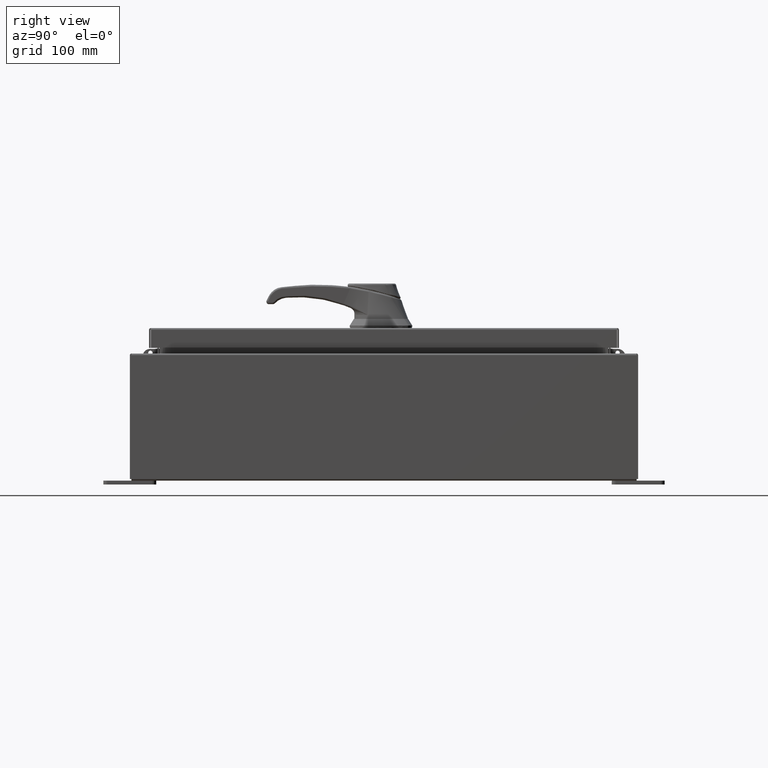
[diagram: clean part render]
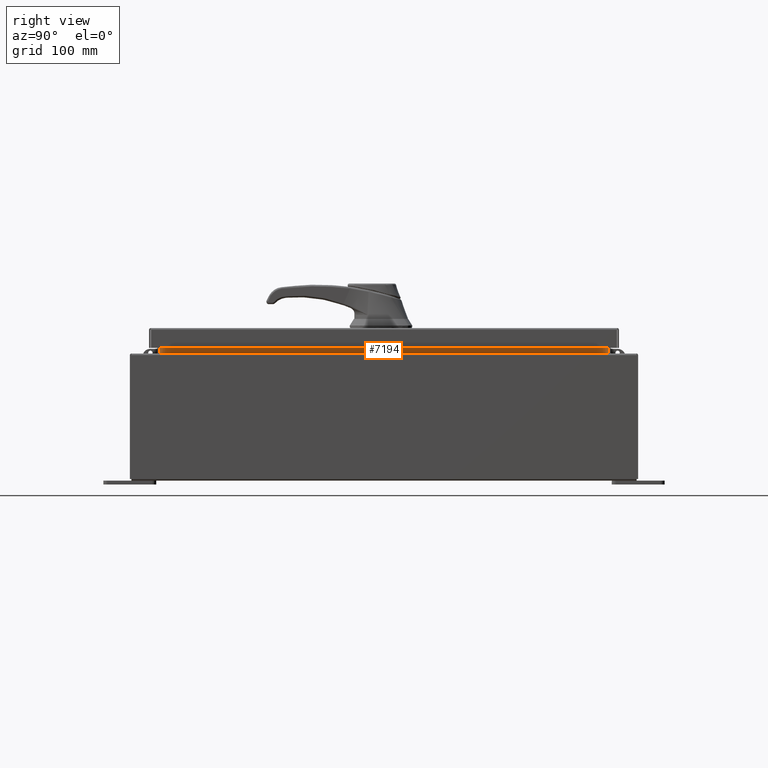
[diagram: same view with one face highlighted and labeled with its STEP entity id]
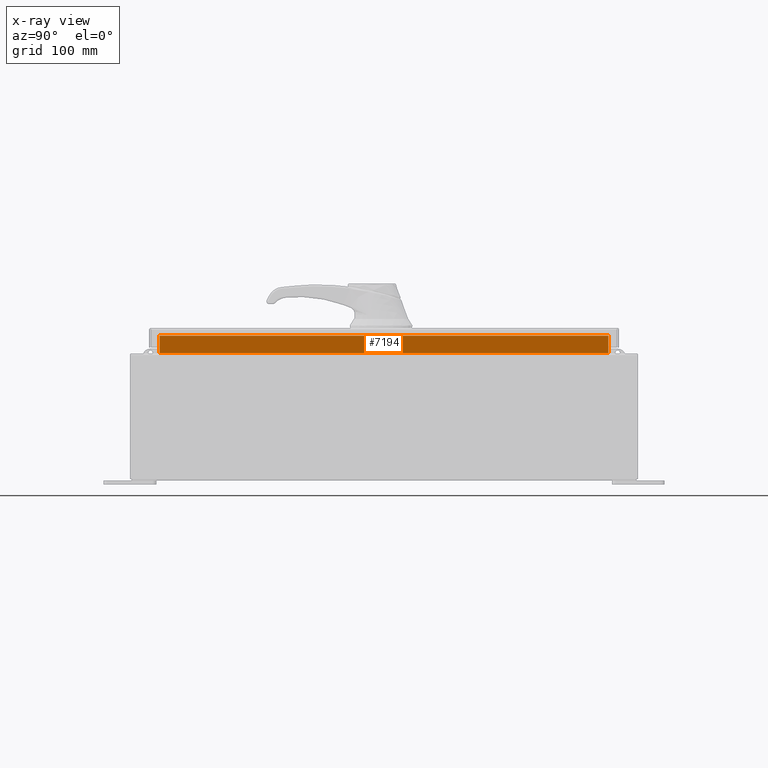
[diagram: x-ray of the same camera — body ghosted, the highlighted face saturated]
A machine part, right view. The second image highlights one B-rep face of the part: STEP entity #7194.
The next image is the same camera in x-ray: the body ghosted, the highlighted face saturated — about 0% of this face is hidden behind the body in this view.
In plain terms, the highlighted planar face has unit normal (1, 0, -0).
Its self-contained STEP definition (entity closure, byte-faithful):
#2173 = CARTESIAN_POINT ( 'NONE',  ( 8.699700000000021300, 10.59374999999999600, 6.762900000000009900 ) ) ;
#7194 = ADVANCED_FACE ( 'NONE', ( #55882 ), #61929, .T. ) ;
#9517 = DIRECTION ( 'NONE',  ( 5.157471138481205900E-017, -1.000000000000000000, 1.547241341544361900E-016 ) ) ;
#9642 = CARTESIAN_POINT ( 'NONE',  ( 8.699699999999998200, 0.0000000000000000000, -3.082190596409509000E-014 ) ) ;
#10014 = DIRECTION ( 'NONE',  ( 1.000000000000000000, 0.0000000000000000000, -3.542869979895294000E-015 ) ) ;
#10655 = LINE ( 'NONE', #76144, #100121 ) ;
#10963 = DIRECTION ( 'NONE',  ( -3.542869979895294000E-015, -0.0000000000000000000, -1.000000000000000000 ) ) ;
#12682 = EDGE_LOOP ( 'NONE', ( #25648, #88381, #84467, #65279 ) ) ;
#12922 = EDGE_CURVE ( 'NONE', #75541, #52327, #48605, .T. ) ;
#13569 = VERTEX_POINT ( 'NONE', #53715 ) ;
#19591 = LINE ( 'NONE', #36802, #85931 ) ;
#20592 = EDGE_CURVE ( 'NONE', #52327, #86916, #19591, .T. ) ;
#25648 = ORIENTED_EDGE ( 'NONE', *, *, #20592, .F. ) ;
#28081 = AXIS2_PLACEMENT_3D ( 'NONE', #9642, #10014, #70604 ) ;
#35749 = DIRECTION ( 'NONE',  ( 0.0000000000000000000, 1.000000000000000000, 0.0000000000000000000 ) ) ;
#36802 = CARTESIAN_POINT ( 'NONE',  ( 8.699700000000019500, 10.59374999999999600, 5.925300000000009800 ) ) ;
#38382 = CARTESIAN_POINT ( 'NONE',  ( 8.699700000000019500, 10.59374999999999600, 5.938300000000012300 ) ) ;
#41710 = DIRECTION ( 'NONE',  ( 3.542869979895298400E-015, -0.0000000000000000000, 1.000000000000000000 ) ) ;
#48605 = LINE ( 'NONE', #78832, #71684 ) ;
#49328 = LINE ( 'NONE', #78795, #69691 ) ;
#52327 = VERTEX_POINT ( 'NONE', #2173 ) ;
#53715 = CARTESIAN_POINT ( 'NONE',  ( 8.699700000000019500, -10.59374999999999800, 5.938300000000012300 ) ) ;
#55882 = FACE_OUTER_BOUND ( 'NONE', #12682, .T. ) ;
#61929 = PLANE ( 'NONE',  #28081 ) ;
#65279 = ORIENTED_EDGE ( 'NONE', *, *, #99043, .F. ) ;
#69691 = VECTOR ( 'NONE', #9517, 39.37007874015748100 ) ;
#70604 = DIRECTION ( 'NONE',  ( -3.542869979895294000E-015, 0.0000000000000000000, -1.000000000000000000 ) ) ;
#71684 = VECTOR ( 'NONE', #35749, 39.37007874015748100 ) ;
#75541 = VERTEX_POINT ( 'NONE', #109680 ) ;
#76144 = CARTESIAN_POINT ( 'NONE',  ( 8.699700000000023100, -10.59375000000000000, 6.850600000000010700 ) ) ;
#78795 = CARTESIAN_POINT ( 'NONE',  ( 8.699700000000021300, 10.59374999999999600, 5.938300000000010600 ) ) ;
#78832 = CARTESIAN_POINT ( 'NONE',  ( 8.699700000000021300, -10.59375000000000000, 6.762900000000009900 ) ) ;
#84467 = ORIENTED_EDGE ( 'NONE', *, *, #92530, .F. ) ;
#85931 = VECTOR ( 'NONE', #10963, 39.37007874015748100 ) ;
#86916 = VERTEX_POINT ( 'NONE', #38382 ) ;
#88381 = ORIENTED_EDGE ( 'NONE', *, *, #12922, .F. ) ;
#92530 = EDGE_CURVE ( 'NONE', #13569, #75541, #10655, .T. ) ;
#99043 = EDGE_CURVE ( 'NONE', #86916, #13569, #49328, .T. ) ;
#100121 = VECTOR ( 'NONE', #41710, 39.37007874015748100 ) ;
#109680 = CARTESIAN_POINT ( 'NONE',  ( 8.699700000000023100, -10.59375000000000000, 6.762900000000009900 ) ) ;